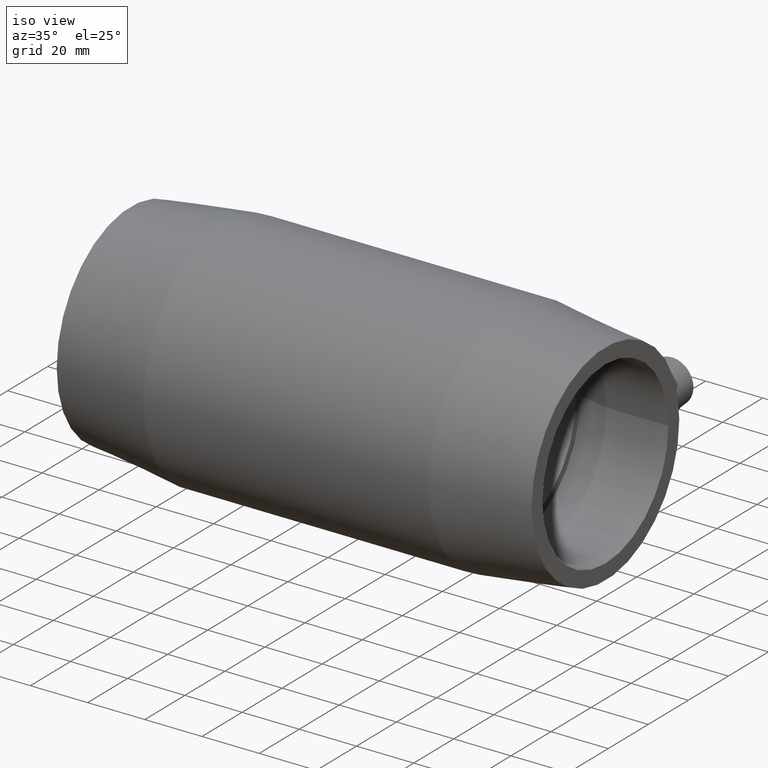
[diagram: clean part render]
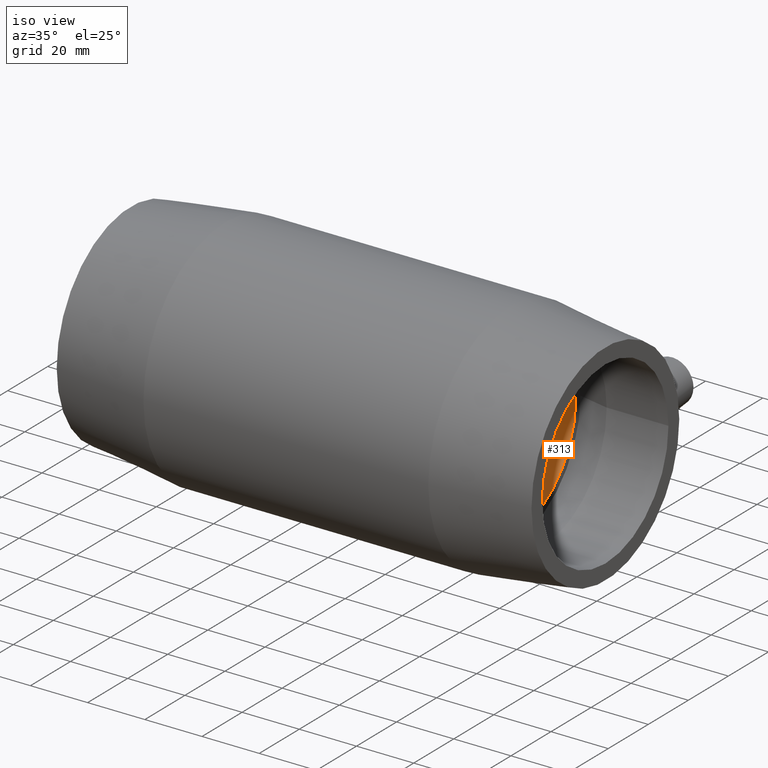
[diagram: same view with one face highlighted and labeled with its STEP entity id]
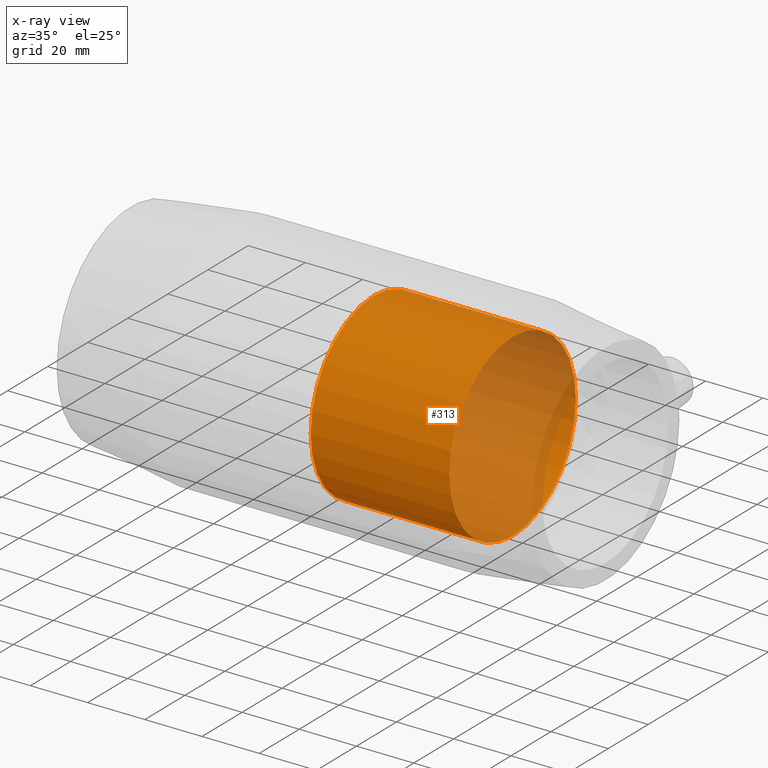
[diagram: x-ray of the same camera — body ghosted, the highlighted face saturated]
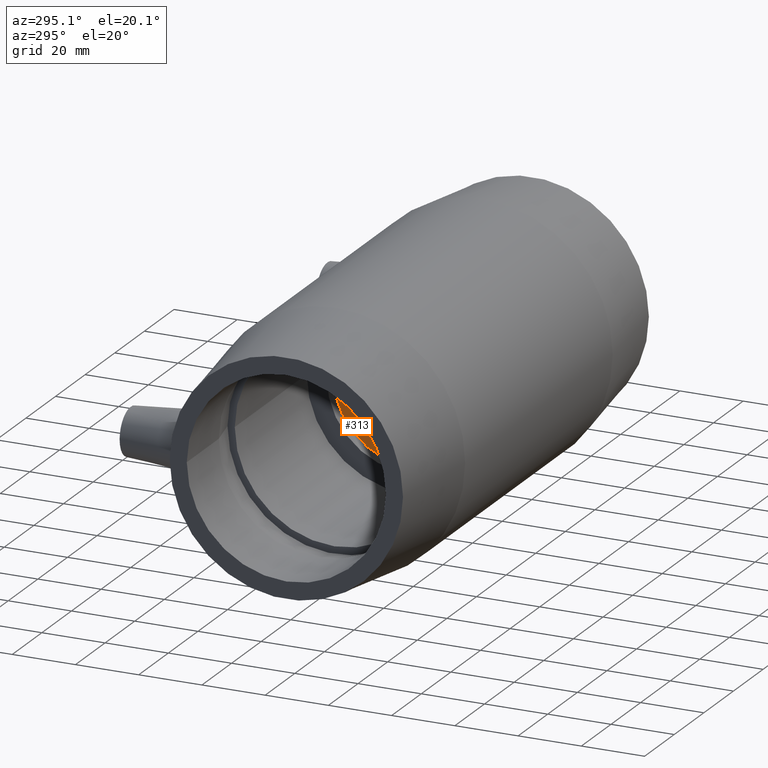
[diagram: same view with one face highlighted and labeled with its STEP entity id]
A machine part, iso view. The second image highlights one B-rep face of the part: STEP entity #313.
The next image is the same camera in x-ray: the body ghosted, the highlighted face saturated — about 37% of this face is hidden behind the body in this view.
A second angle (auxiliary view) of the same face is appended — the face is thin or edge-on in the first view.
In plain terms, the highlighted cylindrical surface (bore or boss wall) has radius 31.5 mm, axis along (1, 0, 0).
Its self-contained STEP definition (entity closure, byte-faithful):
#40=FACE_BOUND('',#125,.T.);
#57=CYLINDRICAL_SURFACE('',#360,31.5);
#79=FACE_OUTER_BOUND('',#124,.T.);
#124=EDGE_LOOP('',(#262));
#125=EDGE_LOOP('',(#263));
#161=CIRCLE('',#359,31.5);
#162=CIRCLE('',#361,31.5);
#189=VERTEX_POINT('',#610);
#190=VERTEX_POINT('',#613);
#217=EDGE_CURVE('',#189,#189,#161,.T.);
#218=EDGE_CURVE('',#190,#190,#162,.T.);
#262=ORIENTED_EDGE('',*,*,#218,.F.);
#263=ORIENTED_EDGE('',*,*,#217,.T.);
#313=ADVANCED_FACE('',(#79,#40),#57,.F.);
#359=AXIS2_PLACEMENT_3D('',#611,#449,#450);
#360=AXIS2_PLACEMENT_3D('',#612,#451,#452);
#361=AXIS2_PLACEMENT_3D('',#614,#453,#454);
#449=DIRECTION('center_axis',(1.,0.,0.));
#450=DIRECTION('ref_axis',(0.,0.,-1.));
#451=DIRECTION('center_axis',(1.,0.,0.));
#452=DIRECTION('ref_axis',(0.,1.,0.));
#453=DIRECTION('center_axis',(1.,0.,0.));
#454=DIRECTION('ref_axis',(0.,0.,-1.));
#610=CARTESIAN_POINT('',(50.6,31.5,0.));
#611=CARTESIAN_POINT('Origin',(50.6,0.,0.));
#612=CARTESIAN_POINT('Origin',(26.3,0.,0.));
#613=CARTESIAN_POINT('',(2.00000000000001,31.5,0.));
#614=CARTESIAN_POINT('Origin',(2.00000000000001,0.,0.));